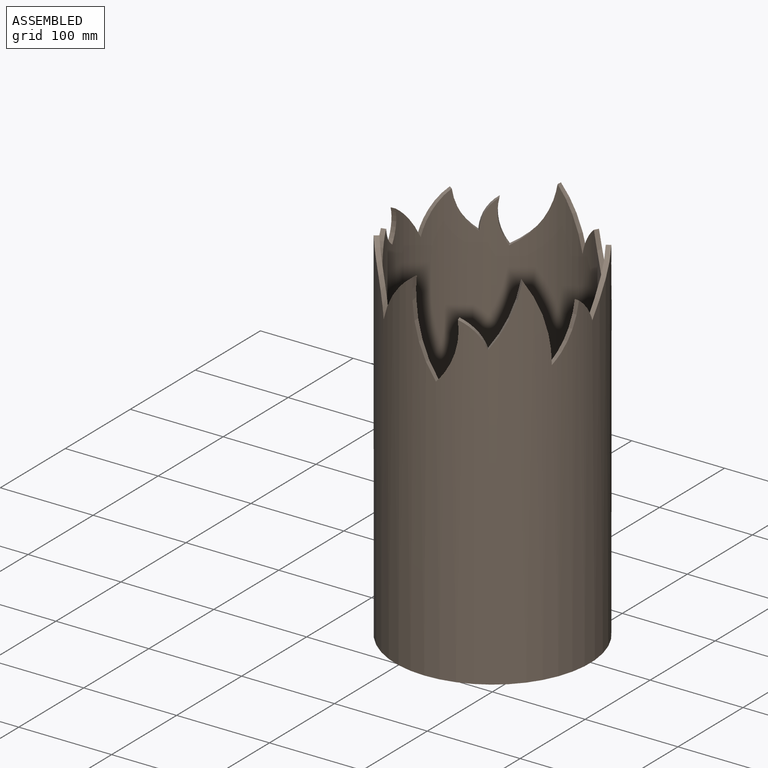
[diagram: assembled view]
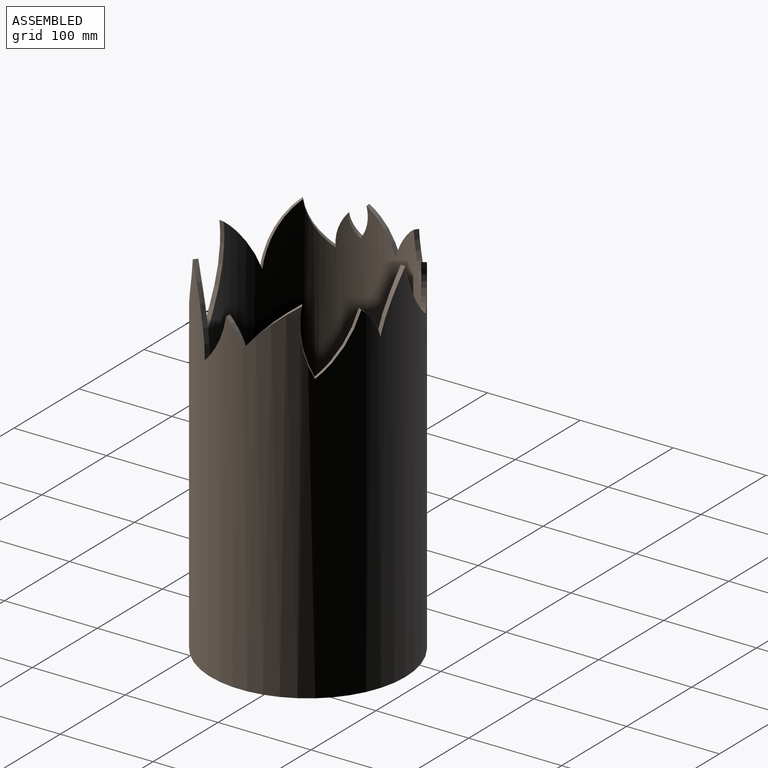
[diagram: assembled view, second angle]
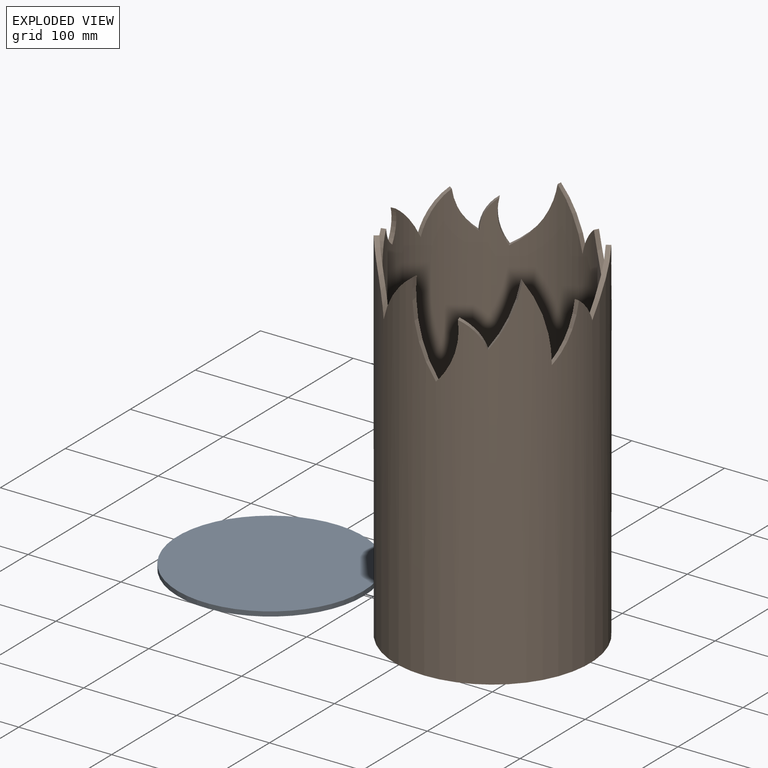
[diagram: exploded view]
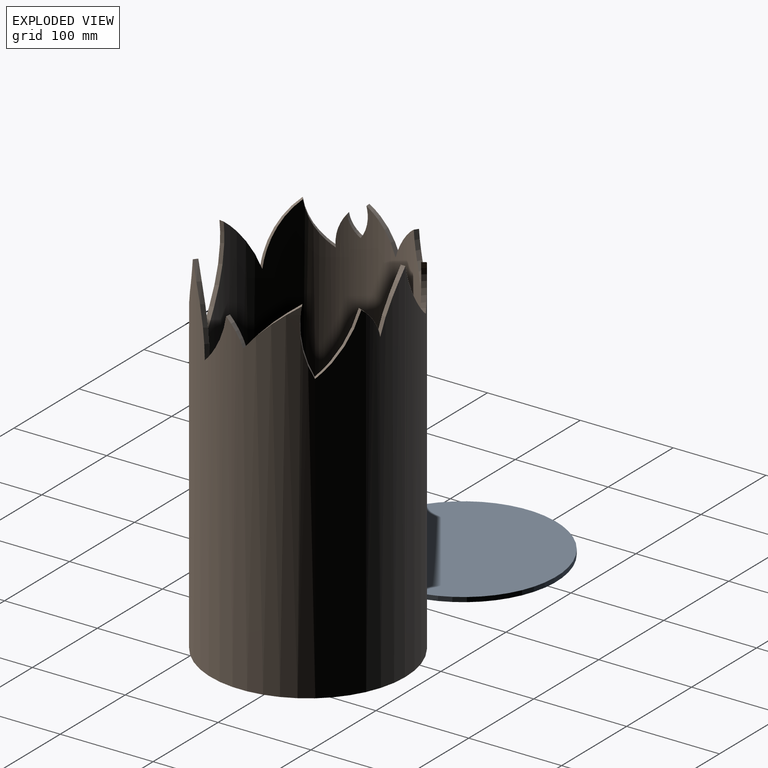
[diagram: exploded view, second angle]
ASSEMBLY  parts=2 mates=2
PART A: 3 faces, bbox 200x200x5 mm
  f0: cylinder r=100mm len=200mm, axis (0,0,-1), area 3141.6mm2, adj f1,f2
  f1: plane 200x200mm, normal (0,0,1), area 31415.9mm2, adj f0
  f2: plane 200x200mm, normal (0,0,-1), area 31415.9mm2, adj f0
PART B: 29 faces, bbox 210.1x210x400 mm
  f0: plane 400x5mm, normal (1,0,0), area 2000mm2, adj f1,f26,f27,f28
  f1: plane 210x210mm, normal (0,0,-1), area 3219.6mm2, adj f0,f2,f27,f28
  f2: plane 400x5mm, normal (-1,0,0), area 2000mm2, adj f1,f3,f27,f28
  f3: bspline ~58.11x31.66mm, area 333.3mm2, adj f2,f4,f27,f28
  f4: bspline ~31.04x19.64mm, area 186.9mm2, adj f3,f5,f27,f28
  f5: bspline ~62.09x34.8mm, area 378.2mm2, adj f4,f6,f27,f28
  f6: bspline ~70.78x13.59mm, area 365.5mm2, adj f5,f7,f27,f28
  f7: bspline ~52.46x49.05mm, area 366.8mm2, adj f6,f8,f27,f28
  f8: bspline ~26.08x19.02mm, area 162.3mm2, adj f7,f9,f27,f28
  f9: bspline ~54.02x29.86mm, area 314.9mm2, adj f8,f10,f27,f28
  f10: bspline ~86.3x25.59mm, area 459.5mm2, adj f9,f11,f27,f28
  f11: bspline ~65.42x25.97mm, area 364.2mm2, adj f10,f12,f27,f28
  f12: bspline ~27.55x25.76mm, area 196.3mm2, adj f11,f13,f27,f28
  f13: bspline ~63.95x21.67mm, area 346.7mm2, adj f12,f14,f27,f28
  f14: bspline ~94.99x25.65mm, area 500.8mm2, adj f13,f15,f27,f28
  f15: bspline ~57.74x42.36mm, area 366.2mm2, adj f14,f16,f27,f28
  f16: bspline ~64.2x31.37mm, area 382.7mm2, adj f15,f17,f27,f28
  f17: bspline ~45.69x28.43mm, area 282.3mm2, adj f16,f18,f27,f28
  f18: bspline ~33.81x12.07mm, area 182.6mm2, adj f17,f19,f27,f28
  f19: bspline ~20.8x14.16mm, area 127.8mm2, adj f18,f20,f27,f28
  f20: bspline ~32.69x7.88mm, area 172.2mm2, adj f19,f21,f27,f28
  f21: bspline ~39.82x35.56mm, area 268.8mm2, adj f20,f22,f27,f28
  f22: bspline ~39.82x31.63mm, area 263.1mm2, adj f21,f23,f27,f28
  f23: bspline ~43.98x22.48mm, area 260.7mm2, adj f22,f24,f27,f28
  f24: bspline ~32.09x17.73mm, area 192.4mm2, adj f23,f25,f27,f28
  f25: bspline ~46.1x11.57mm, area 242.2mm2, adj f24,f26,f27,f28
  f26: bspline ~67.42x47.12mm, area 426.2mm2, adj f0,f25,f27,f28
  f27: cylinder r=105mm len=400mm, axis (0,0,1), area 233612.3mm2, adj f0,f1,f2,f3,f4,f5,f6,f7
  f28: cylinder r=100mm len=400mm, axis (0,0,1), area 222488mm2, adj f0,f1,f2,f3,f4,f5,f6,f7
PLACE A t=(140.6,185.28,-187.75)mm
PLACE B t=(140.6,185.28,-187.75)mm
MATE cylindrical B.f27 <-> A.f0  axis (0,0,1) through (140.6,185.28,13.45)mm
MATE planar B.f1 <-> A.f0  axis (0,0,-1) through (140.6,185.26,-187.75)mm
